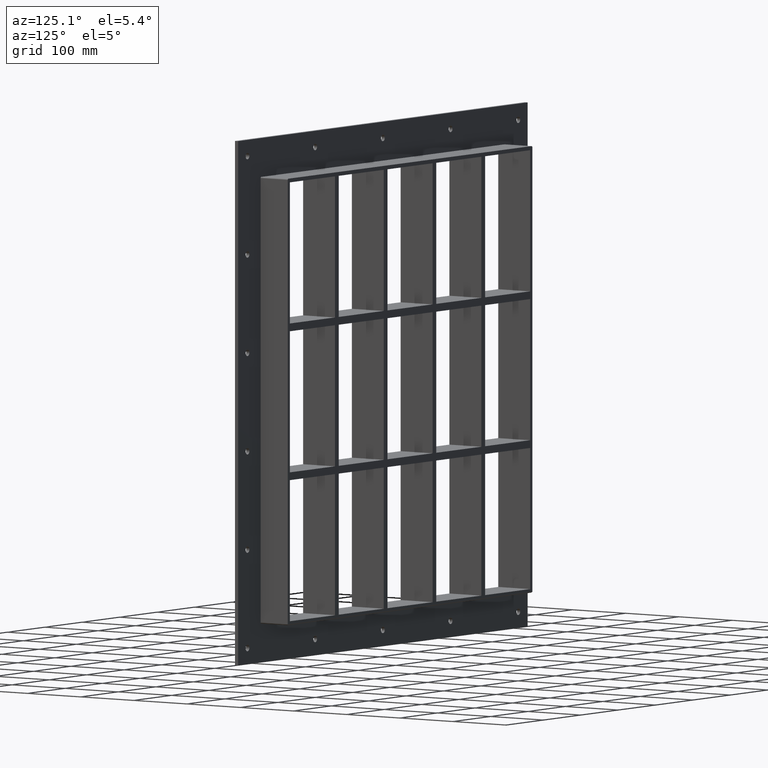
[diagram: clean part render]
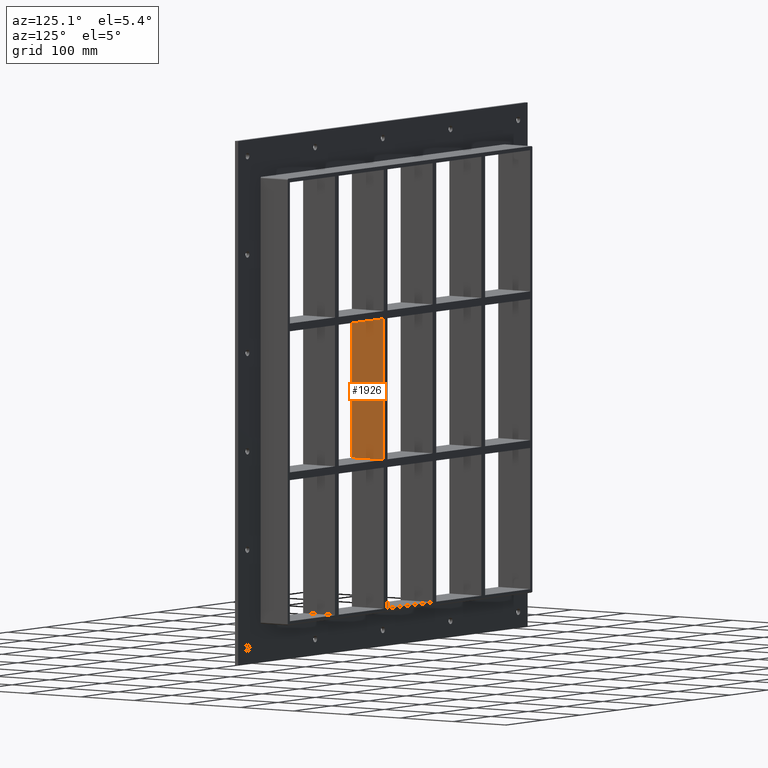
[diagram: same view with one face highlighted and labeled with its STEP entity id]
A machine part, auxiliary view. The second image highlights one B-rep face of the part: STEP entity #1926.
In plain terms, the highlighted planar face has unit normal (1, 0, 0).
Its self-contained STEP definition (entity closure, byte-faithful):
#747=CARTESIAN_POINT('',(70.249999999992738,-3.0,108.99999999998877));
#748=VERTEX_POINT('',#747);
#755=CARTESIAN_POINT('',(70.249999999992738,57.0,108.99999999998877));
#756=VERTEX_POINT('',#755);
#757=CARTESIAN_POINT('',(70.249999999992738,57.0,108.9999999999888));
#758=DIRECTION('',(0.0,-1.0,0.0));
#759=VECTOR('',#758,60.0);
#760=LINE('',#757,#759);
#761=EDGE_CURVE('',#756,#748,#760,.T.);
#1482=CARTESIAN_POINT('',(70.249999999992738,57.0,-108.99999999999977));
#1483=VERTEX_POINT('',#1482);
#1484=CARTESIAN_POINT('',(70.249999999992738,57.0,108.99999999998875));
#1485=DIRECTION('',(0.0,0.0,-1.0));
#1486=VECTOR('',#1485,217.99999999998852);
#1487=LINE('',#1484,#1486);
#1488=EDGE_CURVE('',#756,#1483,#1487,.T.);
#1903=CARTESIAN_POINT('',(70.249999999992738,-3.0,339.00000000000006));
#1904=DIRECTION('',(1.0,0.0,0.0));
#1905=DIRECTION('',(0.0,0.0,-1.0));
#1906=AXIS2_PLACEMENT_3D('',#1903,#1904,#1905);
#1907=PLANE('',#1906);
#1908=ORIENTED_EDGE('',*,*,#761,.T.);
#1909=CARTESIAN_POINT('',(70.249999999992738,-3.0,-108.99999999999977));
#1910=VERTEX_POINT('',#1909);
#1911=CARTESIAN_POINT('',(70.249999999992738,-3.0,108.99999999998875));
#1912=DIRECTION('',(0.0,0.0,-1.0));
#1913=VECTOR('',#1912,217.99999999998852);
#1914=LINE('',#1911,#1913);
#1915=EDGE_CURVE('',#748,#1910,#1914,.T.);
#1916=ORIENTED_EDGE('',*,*,#1915,.T.);
#1917=CARTESIAN_POINT('',(70.249999999992738,57.0,-108.99999999999977));
#1918=DIRECTION('',(0.0,-1.0,0.0));
#1919=VECTOR('',#1918,60.0);
#1920=LINE('',#1917,#1919);
#1921=EDGE_CURVE('',#1483,#1910,#1920,.T.);
#1922=ORIENTED_EDGE('',*,*,#1921,.F.);
#1923=ORIENTED_EDGE('',*,*,#1488,.F.);
#1924=EDGE_LOOP('',(#1908,#1916,#1922,#1923));
#1925=FACE_OUTER_BOUND('',#1924,.T.);
#1926=ADVANCED_FACE('',(#1925),#1907,.T.);